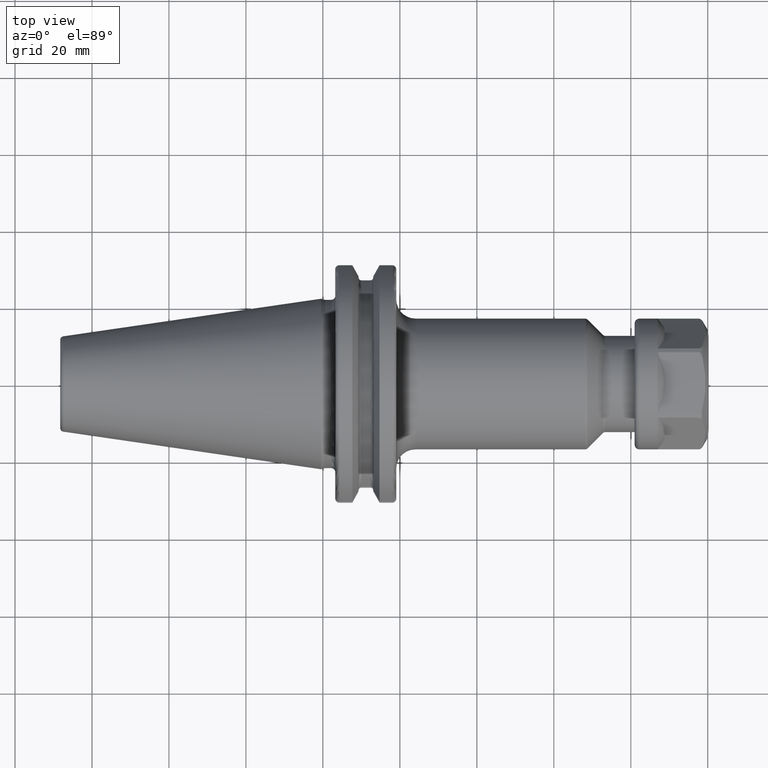
[diagram: clean part render]
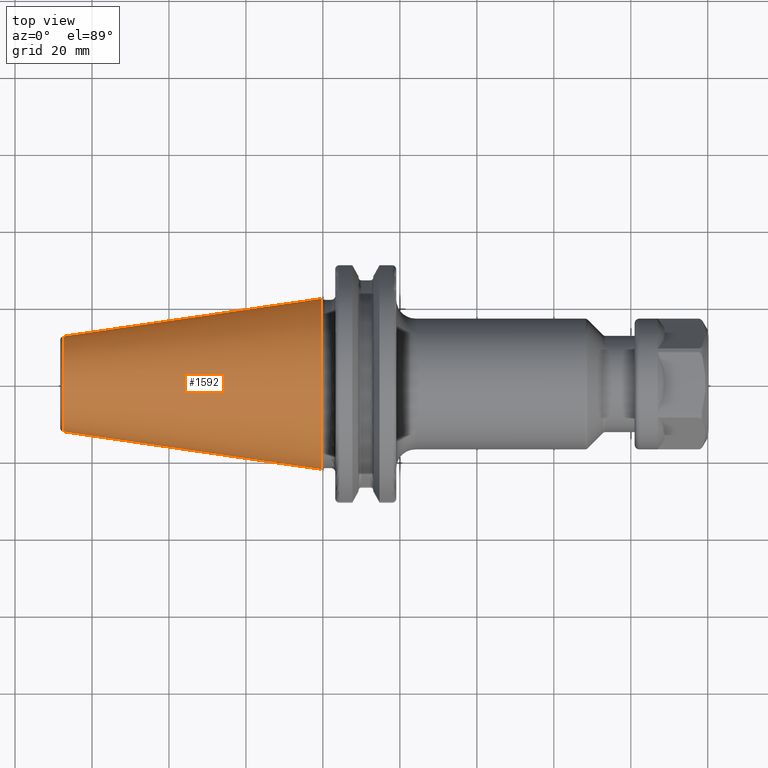
[diagram: same view with one face highlighted and labeled with its STEP entity id]
A machine part, top view. The second image highlights one B-rep face of the part: STEP entity #1592.
In plain terms, the highlighted conical surface has half-angle 8.298 deg.
Its self-contained STEP definition (entity closure, byte-faithful):
#37=CARTESIAN_POINT('',(-6.743710273571E1,0.E0,0.E0));
#38=DIRECTION('',(1.E0,0.E0,0.E0));
#39=DIRECTION('',(0.E0,1.E0,0.E0));
#40=AXIS2_PLACEMENT_3D('',#37,#38,#39);
#42=CARTESIAN_POINT('',(-4.896823332305E-1,0.E0,0.E0));
#43=DIRECTION('',(1.E0,0.E0,0.E0));
#44=DIRECTION('',(0.E0,1.E0,0.E0));
#45=AXIS2_PLACEMENT_3D('',#42,#43,#44);
#47=DIRECTION('',(-9.895312636440E-1,-1.443186691705E-1,0.E0));
#48=VECTOR('',#47,6.765568998391E1);
#49=CARTESIAN_POINT('',(-4.896823332305E-1,2.215358204157E1,0.E0));
#50=LINE('',#49,#48);
#51=DIRECTION('',(-9.895312636440E-1,1.443186691705E-1,0.E0));
#52=VECTOR('',#51,6.765568998391E1);
#53=CARTESIAN_POINT('',(-4.896823332305E-1,-2.215358204157E1,0.E0));
#54=LINE('',#53,#52);
#1264=CARTESIAN_POINT('',(-6.743710273571E1,1.238960290128E1,0.E0));
#1266=VERTEX_POINT('',#1264);
#1268=CARTESIAN_POINT('',(-6.743710273571E1,-1.238960290128E1,0.E0));
#1270=VERTEX_POINT('',#1268);
#1332=CARTESIAN_POINT('',(-4.896823332305E-1,2.215358204157E1,0.E0));
#1333=VERTEX_POINT('',#1332);
#1334=CARTESIAN_POINT('',(-4.896823332305E-1,-2.215358204157E1,0.E0));
#1335=VERTEX_POINT('',#1334);
#1578=CARTESIAN_POINT('',(-3.396339253447E1,0.E0,0.E0));
#1579=DIRECTION('',(1.E0,0.E0,0.E0));
#1580=DIRECTION('',(0.E0,-1.E0,0.E0));
#1581=AXIS2_PLACEMENT_3D('',#1578,#1579,#1580);
#1582=CONICAL_SURFACE('',#1581,1.727159247143E1,8.297826828206E0);
#1584=ORIENTED_EDGE('',*,*,#1583,.F.);
#1586=ORIENTED_EDGE('',*,*,#1585,.T.);
#1588=ORIENTED_EDGE('',*,*,#1587,.T.);
#1589=ORIENTED_EDGE('',*,*,#1571,.F.);
#1590=EDGE_LOOP('',(#1584,#1586,#1588,#1589));
#1591=FACE_OUTER_BOUND('',#1590,.F.);
#1592=ADVANCED_FACE('',(#1591),#1582,.T.);
#41=CIRCLE('',#40,1.238960290128E1);
#46=CIRCLE('',#45,2.215358204157E1);
#1571=EDGE_CURVE('',#1266,#1270,#41,.T.);
#1583=EDGE_CURVE('',#1333,#1266,#50,.T.);
#1585=EDGE_CURVE('',#1333,#1335,#46,.T.);
#1587=EDGE_CURVE('',#1335,#1270,#54,.T.);